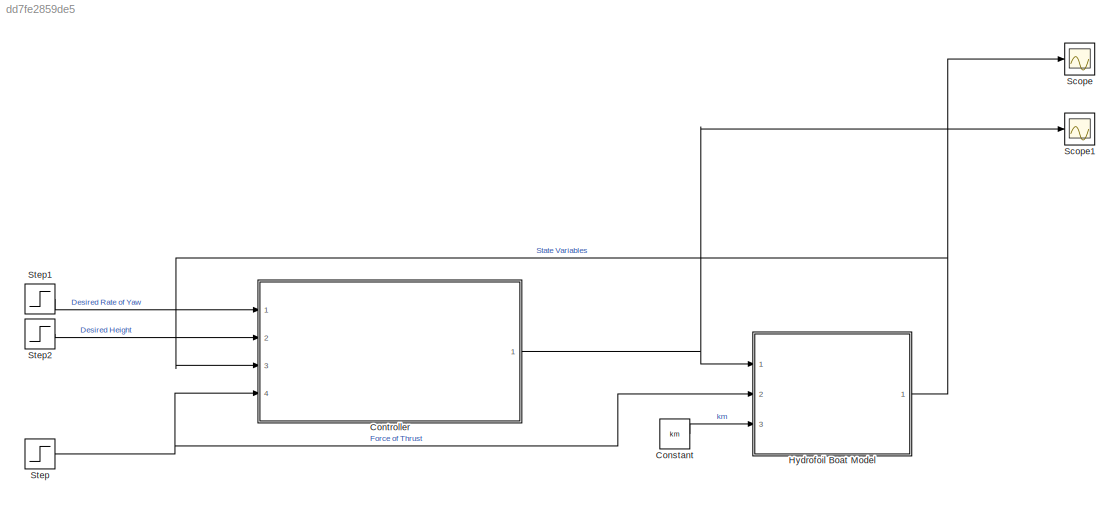
MODEL slx_dd7fe2859de5
KIND model
CONFIG AbsTol = auto
CONFIG EnableMultiTasking = off
CONFIG FixedStep = 0.05
CONFIG MaxStep = 0.1
CONFIG MinStep = auto
CONFIG RelTol = 1e-3
CONFIG SampleTimeConstraint = Unconstrained
CONFIG Solver = VariableStepAuto
CONFIG SolverName = VariableStepAuto
CONFIG StartTime = 0.0
CONFIG StopTime = 1
BLOCK [Constant] Constant
  Value = km
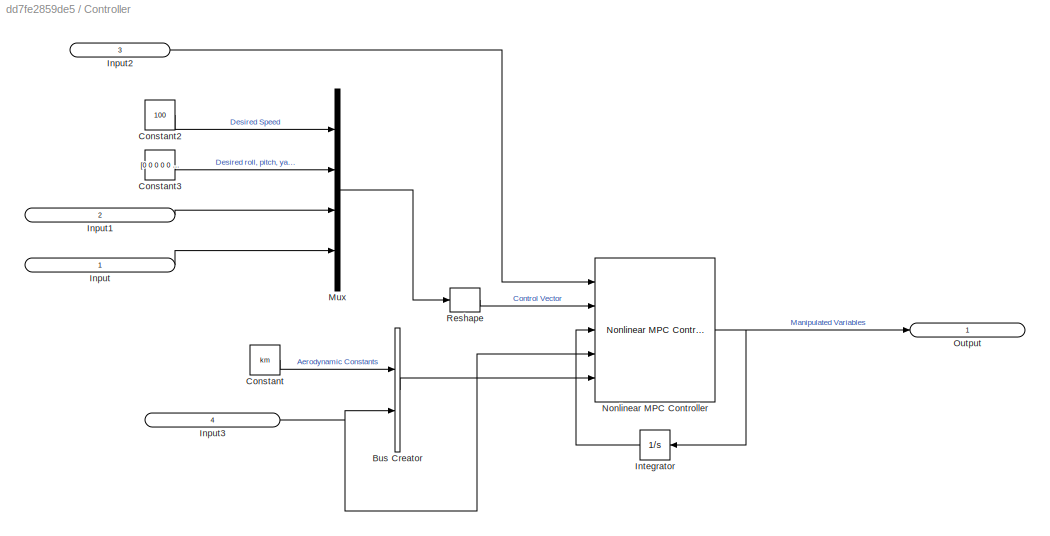
BLOCK [SubSystem] Controller
  Ports = [4, 1]
  RequestExecContextInheritance = off
BLOCK [BusCreator] Controller/Bus Creator
  DisplayOption = bar
  InheritFromInputs = off
  Inputs = 2
  NonVirtualBus = on
  OutDataTypeStr = Bus: myBusObject_1
  Ports = [2, 1]
BLOCK [Constant] Controller/Constant
  Value = km
BLOCK [Constant] Controller/Constant2
  Value = 100
BLOCK [Constant] Controller/Constant3
  Value = [0 0 0 0 0 0 0]
BLOCK [Inport] Controller/Input
  IconDisplay = Signal name
BLOCK [Inport] Controller/Input1
  IconDisplay = Signal name
  Port = 2
BLOCK [Inport] Controller/Input2
  IconDisplay = Signal name
  Port = 3
BLOCK [Inport] Controller/Input3
  IconDisplay = Signal name
  Port = 4
BLOCK [Integrator] Controller/Integrator
  Ports = [1, 1]
BLOCK [Mux] Controller/Mux
  DisplayOption = bar
  Ports = [4, 1]
BLOCK [Reference] Controller/Nonlinear MPC Controller  REF=mpclib/Nonlinear MPC Controller  (lib defined in mdl_ae329e0e0455)
  Ports = [5, 1]
  SCDEnableBlockLinearizationSpecification = on
  SourceBlock = mpclib/Nonlinear MPC Controller
  SourceProductBaseCode = MP
  SourceProductName = Model Predictive Control Toolbox
  SourceType = NonlinearMPC
BLOCK [Outport] Controller/Output
  IconDisplay = Signal name
BLOCK [Reshape] Controller/Reshape
  OutputDimensionality = Row vector (2-D)
  Ports = [1, 1]
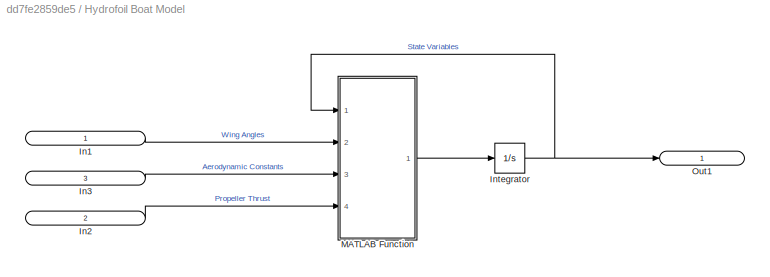
BLOCK [SubSystem] Hydrofoil Boat Model
  Ports = [3, 1]
  RequestExecContextInheritance = off
BLOCK [Inport] Hydrofoil Boat Model/In1
  IconDisplay = Signal name
BLOCK [Inport] Hydrofoil Boat Model/In2
  IconDisplay = Signal name
  Port = 2
BLOCK [Inport] Hydrofoil Boat Model/In3
  IconDisplay = Signal name
  Port = 3
BLOCK [Integrator] Hydrofoil Boat Model/Integrator
  Ports = [1, 1]
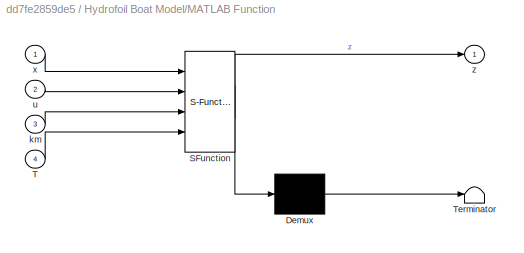
BLOCK [SubSystem] Hydrofoil Boat Model/MATLAB Function
  ErrorFcn = Stateflow.Translate.translate
  PermitHierarchicalResolution = ExplicitOnly
  Ports = [4, 1]
  RequestExecContextInheritance = off
  SFBlockType = MATLAB Function
  TreatAsAtomicUnit = on
BLOCK [Demux] Hydrofoil Boat Model/MATLAB Function/ Demux 
  Outputs = 1
  Ports = [1, 1]
BLOCK [S-Function] Hydrofoil Boat Model/MATLAB Function/ SFunction 
  EnableBusSupport = on
  FunctionName = sf_sfun
  PortCounts = [4 2]
  Ports = [4, 2]
  SFcnIsStateOwnerBlock = off
  SFunctionDeploymentMode = off
  Tag = Stateflow S-Function 2
BLOCK [Terminator] Hydrofoil Boat Model/MATLAB Function/ Terminator 
BLOCK [Inport] Hydrofoil Boat Model/MATLAB Function/T
  IconDisplay = Port number
  Port = 4
BLOCK [Inport] Hydrofoil Boat Model/MATLAB Function/km
  IconDisplay = Port number
  Port = 3
BLOCK [Inport] Hydrofoil Boat Model/MATLAB Function/u
  IconDisplay = Port number
  Port = 2
BLOCK [Inport] Hydrofoil Boat Model/MATLAB Function/x
  IconDisplay = Port number
BLOCK [Outport] Hydrofoil Boat Model/MATLAB Function/z
  IconDisplay = Port number
BLOCK [Outport] Hydrofoil Boat Model/Out1
  IconDisplay = Signal name
BLOCK [Scope] Scope
  Floating = off
  NumInputPorts = 1
  Ports = [1]
  ScopeSpecificationString = Simulink.scopes.TimeScopeBlockCfg('CurrentConfiguration', extmgr.ConfigurationSet(extmgr.Configuration('Core','General UI',true),extmgr.Configuration('Core','Source UI',true),extmgr.Configuration('Sources','WiredSimulink',true),extmgr.Configuration('Visuals','Time Domain',true,'SerializedDisplays',{struct('MinYLimReal','-15.4104','MaxYLimReal','28.82','YLabelReal','','MinYLimMag','0.00000','MaxYLi...<+1584ch>
BLOCK [Scope] Scope1
  Floating = off
  NumInputPorts = 1
  Ports = [1]
  ScopeSpecificationString = Simulink.scopes.TimeScopeBlockCfg('CurrentConfiguration', extmgr.ConfigurationSet(extmgr.Configuration('Core','General UI',true),extmgr.Configuration('Core','Source UI',true),extmgr.Configuration('Sources','WiredSimulink',true,'DataLoggingVariableName','ScopeData1'),extmgr.Configuration('Visuals','Time Domain',true,'SerializedDisplays',{struct('MinYLimReal','-2.2515','MaxYLimReal','26.57777','YLab...<+1418ch>
BLOCK [Step] Step
  After = 1000
  SampleTime = 0
  Time = 0
BLOCK [Step] Step1
  SampleTime = 0
  Time = 0
BLOCK [Step] Step2
  After = 0
  SampleTime = 0
  Time = 0
LINE Constant:1 -> Hydrofoil Boat Model:3
LINE Controller/Bus Creator:1 -> Controller/Nonlinear MPC Controller:5
LINE Controller/Constant2:1 -> Controller/Mux:1
LINE Controller/Constant3:1 -> Controller/Mux:2
LINE Controller/Constant:1 -> Controller/Bus Creator:1
LINE Controller/Input1:1 -> Controller/Mux:3
LINE Controller/Input2:1 -> Controller/Nonlinear MPC Controller:1
NET Controller/Input3:1 -> Controller/Bus Creator:2, Controller/Nonlinear MPC Controller:4
LINE Controller/Input:1 -> Controller/Mux:4
LINE Controller/Integrator:1 -> Controller/Nonlinear MPC Controller:3
LINE Controller/Mux:1 -> Controller/Reshape:1
NET Controller/Nonlinear MPC Controller:1 -> Controller/Integrator:1, Controller/Output:1
LINE Controller/Reshape:1 -> Controller/Nonlinear MPC Controller:2
NET Controller:1 -> Hydrofoil Boat Model:1, Scope1:1
LINE Hydrofoil Boat Model/In1:1 -> Hydrofoil Boat Model/MATLAB Function:2
LINE Hydrofoil Boat Model/In2:1 -> Hydrofoil Boat Model/MATLAB Function:4
LINE Hydrofoil Boat Model/In3:1 -> Hydrofoil Boat Model/MATLAB Function:3
NET Hydrofoil Boat Model/Integrator:1 -> Hydrofoil Boat Model/MATLAB Function:1, Hydrofoil Boat Model/Out1:1
LINE Hydrofoil Boat Model/MATLAB Function:1 -> Hydrofoil Boat Model/Integrator:1
NET Hydrofoil Boat Model:1 -> Controller:3, Scope:1
LINE Step1:1 -> Controller:1
LINE Step2:1 -> Controller:2
NET Step:1 -> Controller:4, Hydrofoil Boat Model:2
note: NET lines group one-source signal fan-out (src -> all destinations, sorted); 1:1 wires keep LINE
CHART Hydrofoil Boat Model/MATLAB Function states=1 transitions=1
  STATE_LABEL 'eML_blk_kernel()'
  STATE_LABEL 'SCRIPT:\nfunction z = fcn(x, u, km, T)\nz = zeros(10,1);\nz = scalemodelstatefunction(x,u,km,T);\n'
